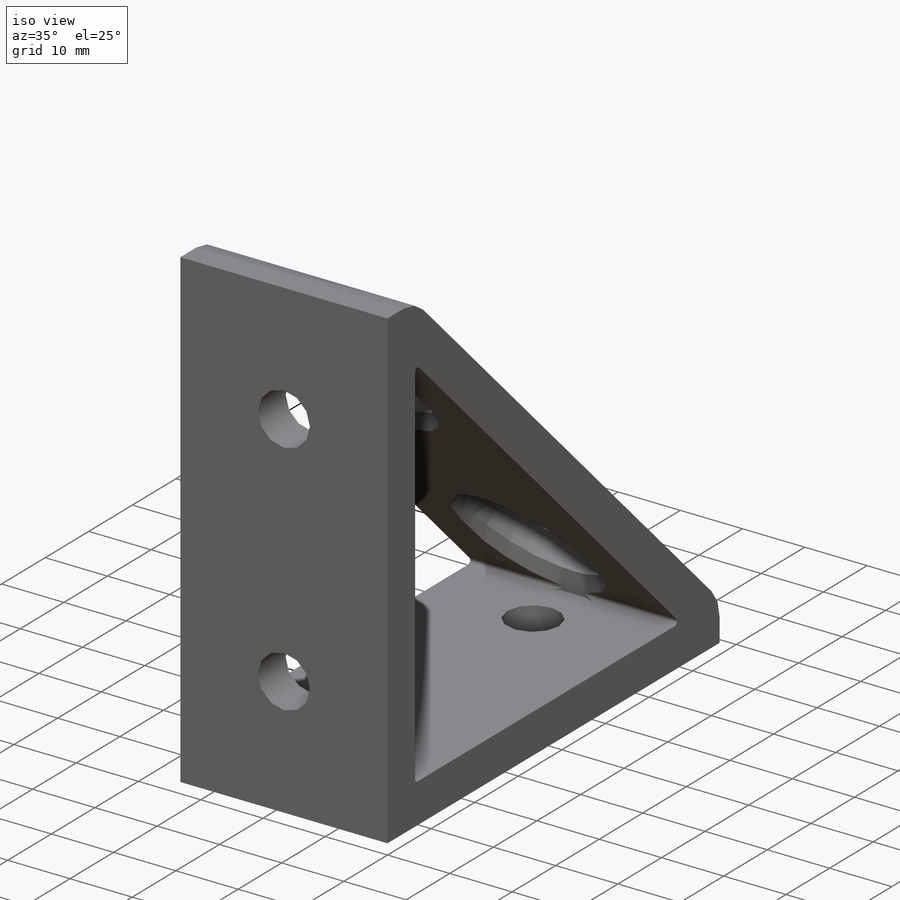
[diagram: iso view]
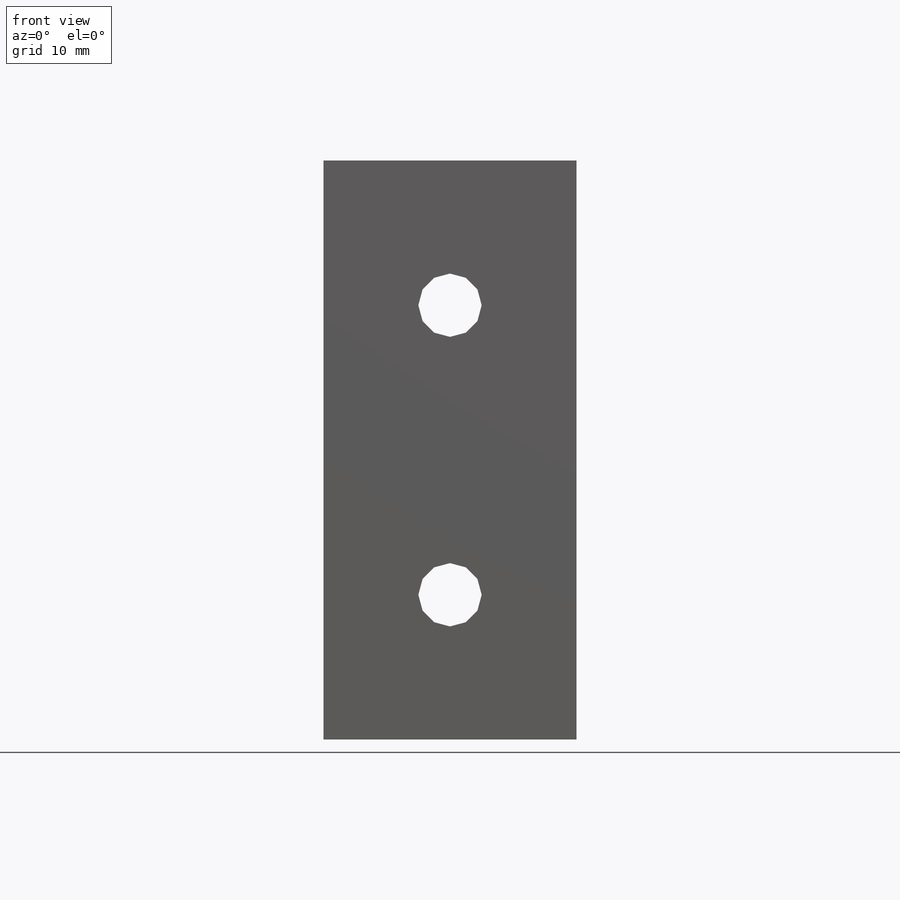
[diagram: front view]
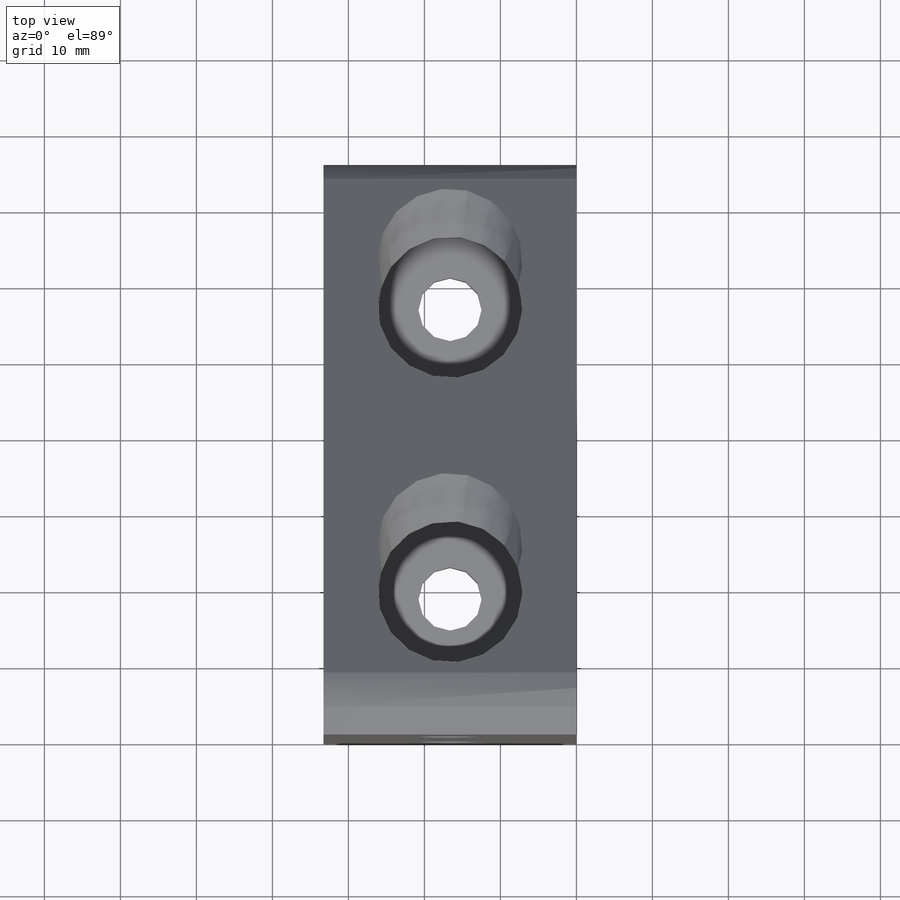
[diagram: top view]
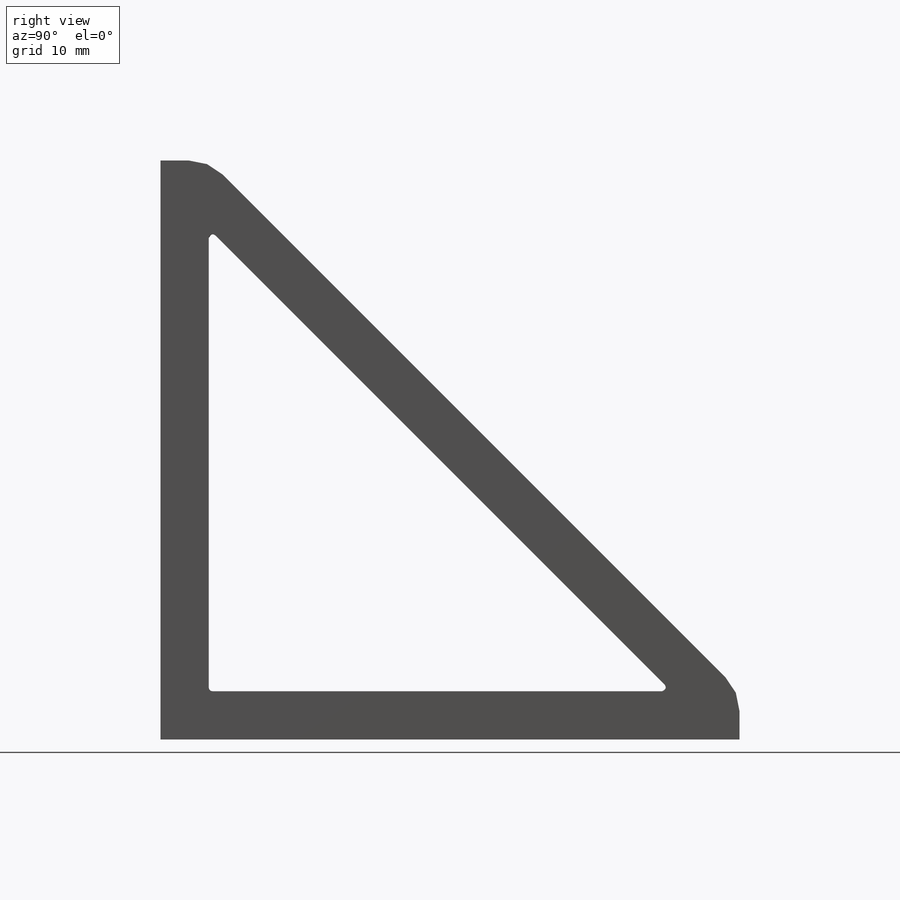
[diagram: right view]
SOLIDWORKS PART (.sldprt)
format: sldprt  version: not decoded by parser v0  size: 576,512 bytes
history: native  units: mm
features: sketch x5, pattern_linear x2, material x1, extrude x1, cut_extrude x1, hole x1 + 1 further entry (+27 scaffold rows collapsed; 10 parser-record rows omitted)
feature tree (49):
  scaffold x27  (default folders/planes/origin — collapsed)
  material  "Material <not specified>"
  parser-record x10  (decoder bookkeeping rows leaked as tree rows — omitted from the tree; the rows remain in map.json)
  "Design Table"
  sketch  "Sketch1"  dims[c1.OuterRadius=6.35mm c1.InnerRadius=0.508mm c1.D4=4.7752mm c1.D1=25.4mm c1.D2=25.4mm c1.D3=~4.273702mm c2.D4=4.7752mm c2.LengthZ=38.1mm c2.HeightY=38.1mm c2.Thickness=6.35mm c2.D5=25.4mm c2.Angle=45.0deg c2.D6=4.7752mm c2.D9=~25.211967mm c2.CornerZ=3.7084mm]
  extrude  "Base Extrude"  Depth=33.274mm WidthX=33.274mm
  sketch  "Sketch2"  dims[D1=8.3312mm Hole1Z=19.05mm Hole1X=16.637mm]
  cut_extrude  "Hole1"  Depth=37.465mm
  sketch  "Sketch3"  dims[Hole1aDiam=19.05mm D1=24.765mm D2=37.465mm D3=1.0deg D4=1.0deg]
  pattern_linear  "Hole1 Pattern"  Count1=2 Count2=2 Spacing1=38.1mm Spacing2=38.1mm NumberX=2 SpacingX=38.1mm NumberZ=2 SpacingZ=38.1mm
  sketch  "Sketch4"  dims[Hole2Diam=8.3312mm Hole2X=16.637mm Hole2Y=19.05mm]
  hole  "Hole2"  Diameter=12.065mm
  sketch  "Sketch5"  dims[Hole2aDiam=19.05mm D1=19.685mm D2=12.065mm D3=1.0deg D4=1.0deg]
  pattern_linear  "Hole2 Pattern"  Count1=2 Count2=2 Spacing1=38.1mm Spacing2=38.1mm NumberX=2 SpacingX=38.1mm NumberY=2 SpacingY=38.1mm
decode coverage: 10 of 10 modeling features carry decoded parameters; 1 rows unclassified (native names shown)
note: ~ marks probable driven/reference dimensions
note: suppression state not decoded; provenance and decode notes live in map.json
